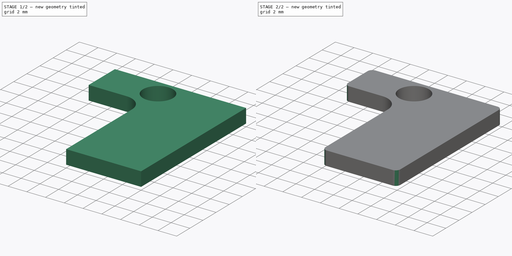
[diagram: build sequence overview — one tinted view per stage of 2, left to right]
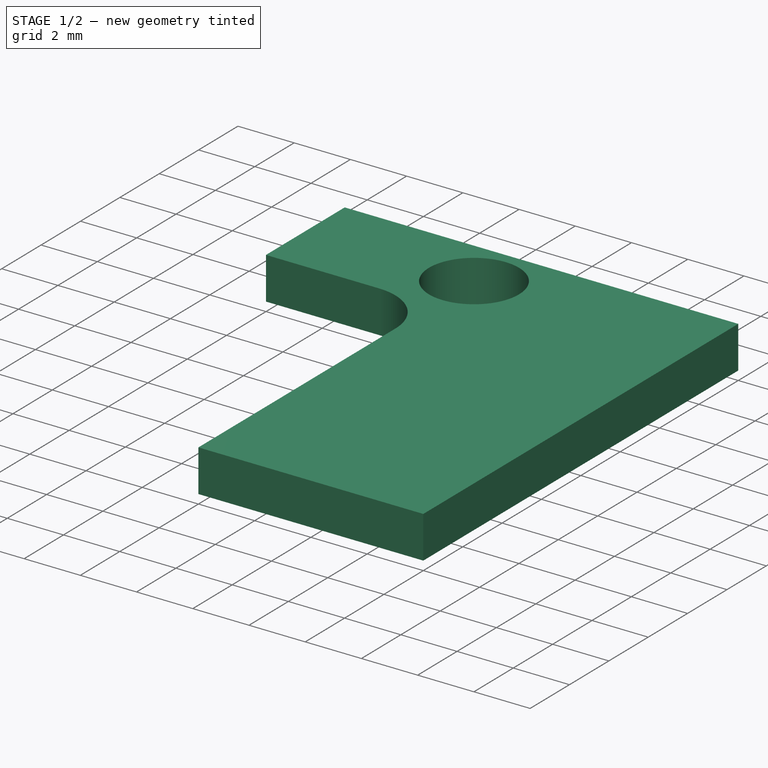
[diagram: stage 1 of 2 — iso view after this stage's code; geometry added in this stage tinted green]
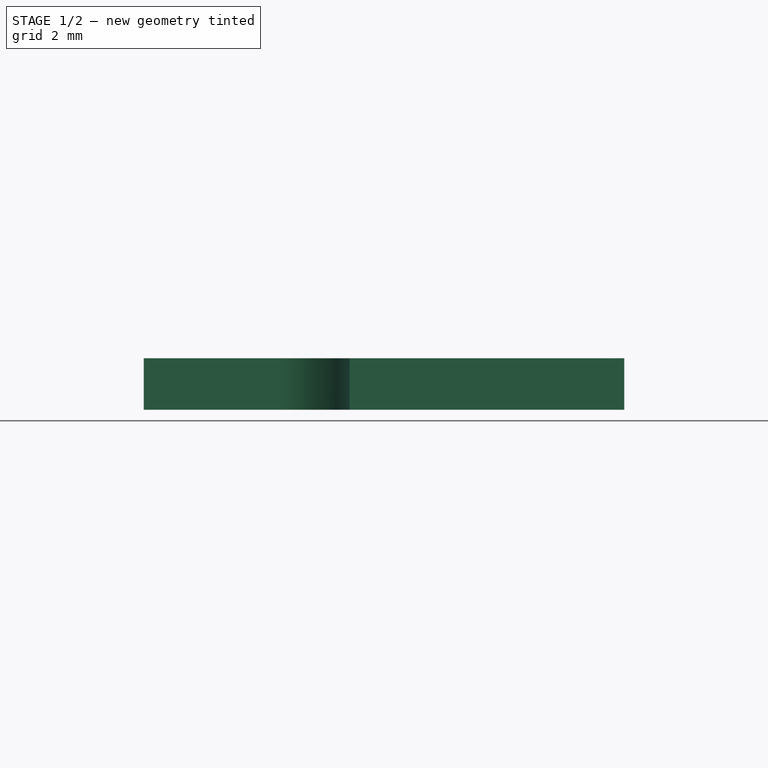
[diagram: stage 1 of 2 — front view after this stage's code; geometry added in this stage tinted green]
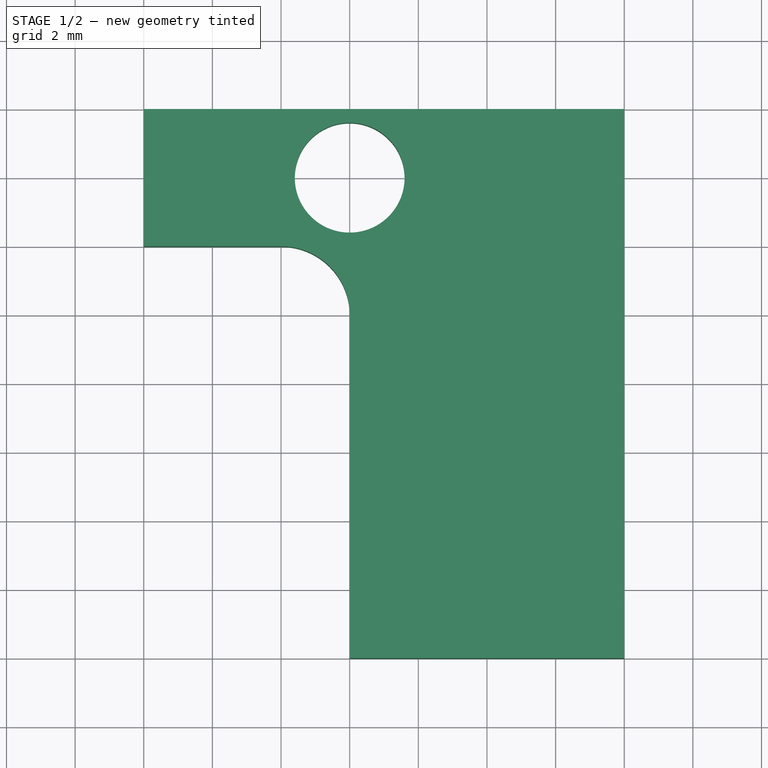
[diagram: stage 1 of 2 — top view after this stage's code; geometry added in this stage tinted green]
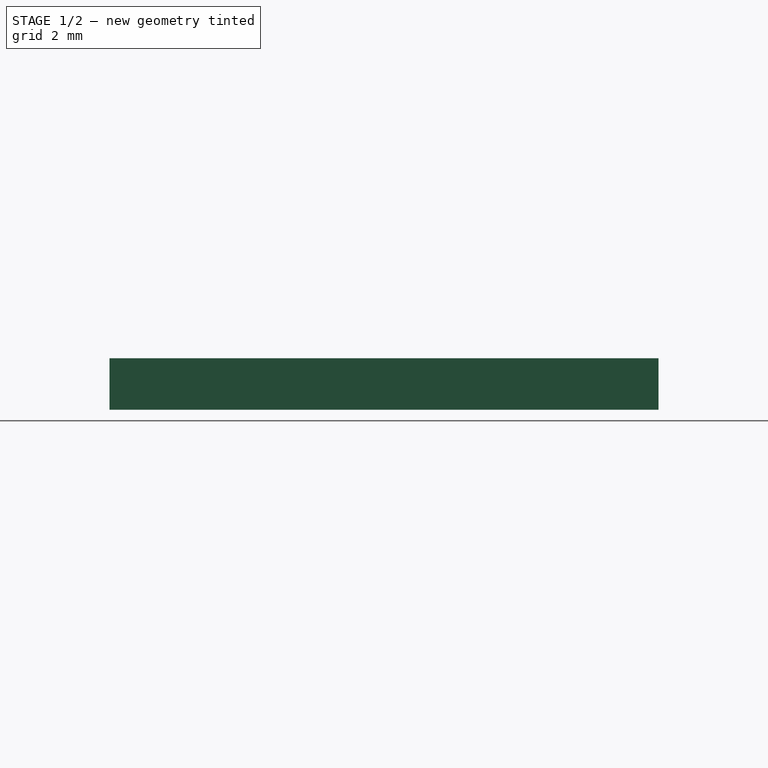
[diagram: stage 1 of 2 — right view after this stage's code; geometry added in this stage tinted green]
FCSTD DOCUMENT  (FreeCAD 0.17R11850 (Git))
Label: somestruder_retention_plate
License: All rights reserved
LicenseURL: http://en.wikipedia.org/wiki/All_rights_reserved
objects: Drawing::FeatureView×13, Drawing::FeatureViewPart×4, PartDesign::Fillet×2, Sketcher::SketchObject×1, PartDesign::Pad×1, PartDesign::Body×1, Drawing::FeaturePage×1
note: 6 computed .brp shape members not serialized (recipe doc carries the construction recipe); baked Part::Feature solids carry a one-line shape summary decoded from their .brp

FEATURE [Sketcher::SketchObject] Sketch
  MapMode = 5
  Support = -> [XY_Plane]
  sketch-geometry (9):
    g0: LineSegment StartX=8 StartY=0 StartZ=0 EndX=8 EndY=16 EndZ=0
    g1: LineSegment StartX=8 StartY=16 StartZ=0 EndX=-6 EndY=16 EndZ=0
    g2: LineSegment StartX=0 StartY=0 StartZ=0 EndX=0 EndY=12 EndZ=0
    g3: LineSegment StartX=0 StartY=12 StartZ=0 EndX=-6 EndY=12 EndZ=0
    g4: Circle CenterX=15.6092 CenterY=41.986 CenterZ=0 NormalX=0 NormalY=0 NormalZ=1 Radius=5.85302
    g5: LineSegment StartX=-6 StartY=16 StartZ=0 EndX=-6 EndY=12 EndZ=0
    g6: LineSegment StartX=0 StartY=0 StartZ=0 EndX=8 EndY=0 EndZ=0
    g7: Circle CenterX=0 CenterY=14 CenterZ=0 NormalX=0 NormalY=0 NormalZ=1 Radius=1.6
    g8: LineSegment [constr] StartX=0 StartY=16 StartZ=0 EndX=0 EndY=12 EndZ=0
  constraints (23):
    c: Coincident(g0,g1)
    c: Horizontal(g1)
    c: Vertical(g0)
    c: Coincident(g2,g3)
    c: Horizontal(g3)
    c: Vertical(g2)
    c: Coincident(g5,g1)
    c: Coincident(g5,g3)
    c: Vertical(g5)
    c: Coincident(g6,g2)
    c: Coincident(g6,g0)
    c: Horizontal(g6)
    c: DistanceX(g1,g1) = 14
    c: DistanceY(g0,g0) = 16
    c: DistanceY(g5,g5) = 4
    c: DistanceX(g6,g6) = 8
    c: Coincident(g2,g-1)
    c: PointOnObject(g7,g-2)
    c: Radius(g7) = 1.6
    c: PointOnObject(g8,g1)
    c: Coincident(g8,g2)
    c: Vertical(g8)
    c: Symmetric(g2,g8,g7)
FEATURE [PartDesign::Pad] Pad
  Length = 1.5
  Length2 = 100
  Profile = -> Sketch
  Type = 0
FEATURE [PartDesign::Fillet] Fillet
  Base = -> Pad [Edge14]
  BaseFeature = -> Pad
  Radius = 2
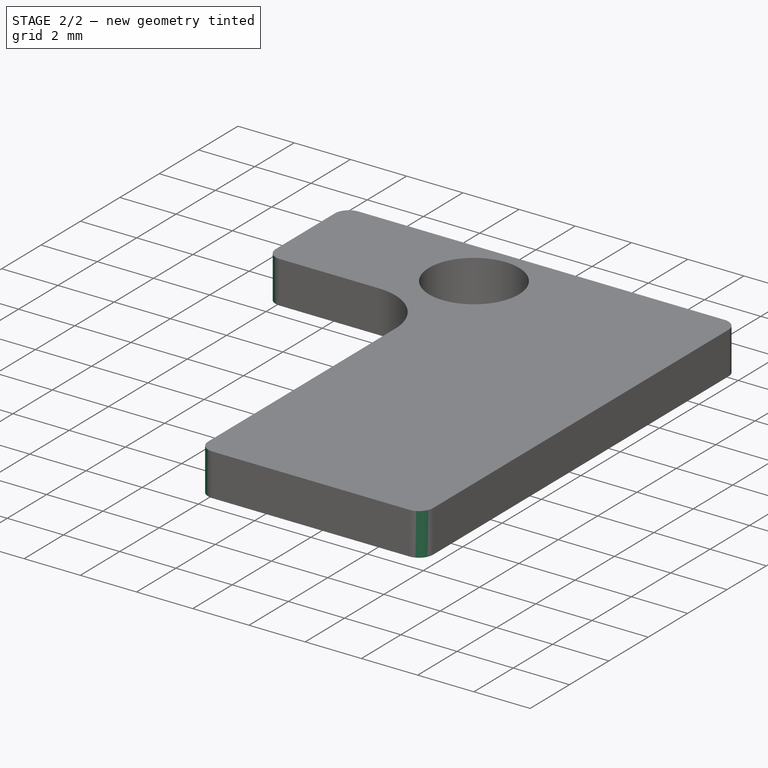
[diagram: stage 2 of 2 — iso view after this stage's code; geometry added in this stage tinted green]
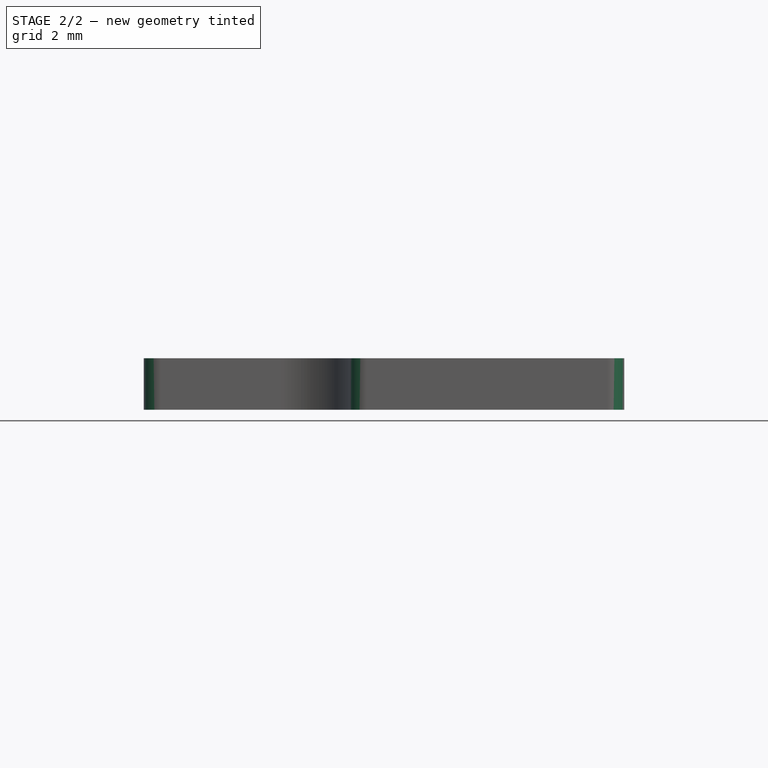
[diagram: stage 2 of 2 — front view after this stage's code; geometry added in this stage tinted green]
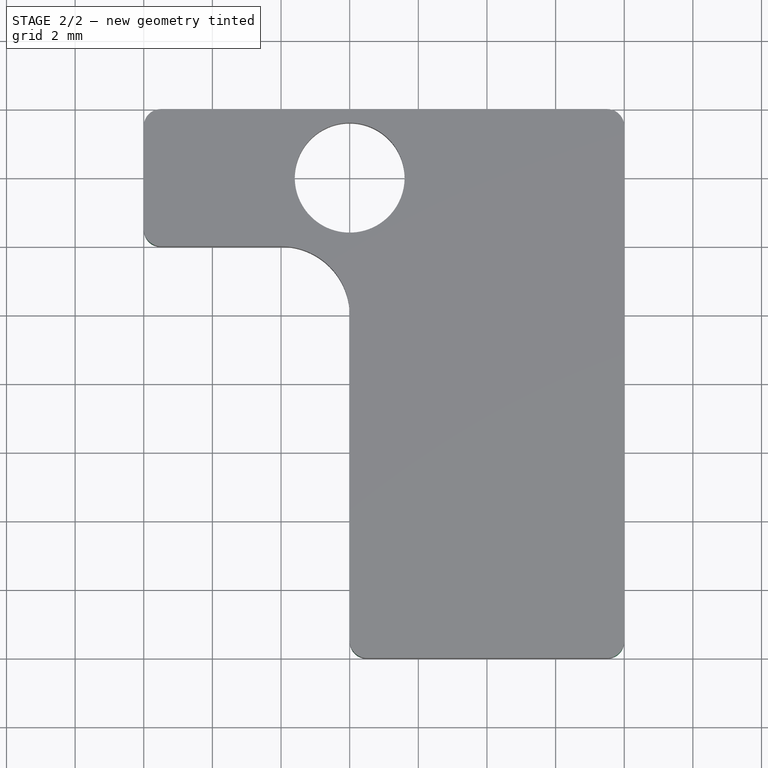
[diagram: stage 2 of 2 — top view after this stage's code; geometry added in this stage tinted green]
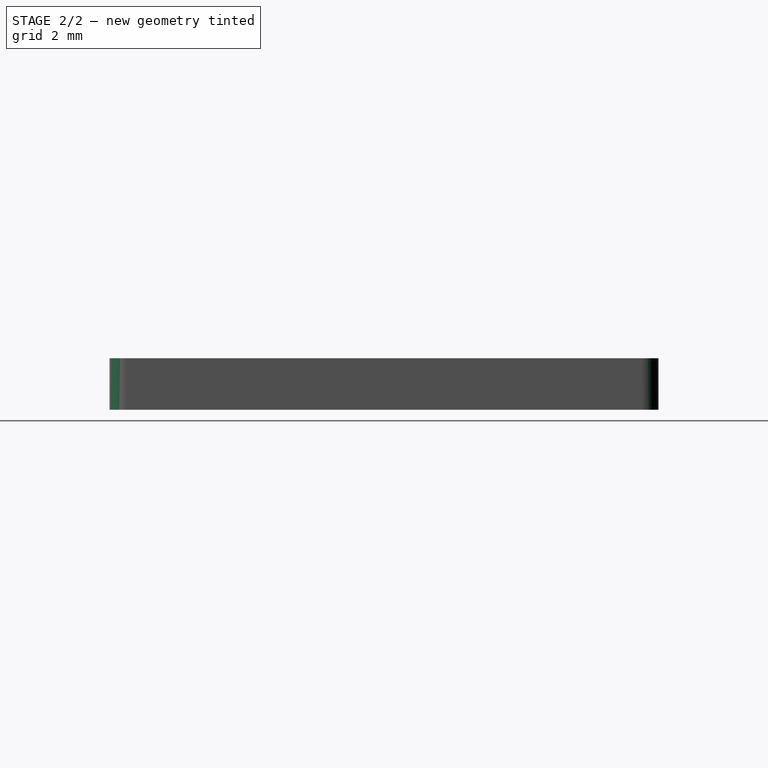
[diagram: stage 2 of 2 — right view after this stage's code; geometry added in this stage tinted green]
FEATURE [PartDesign::Fillet] Fillet001
  Base = -> Fillet [Edge3,Edge14,Edge21,Edge23,Edge22]
  BaseFeature = -> Fillet
  Radius = 0.5
FEATURE [PartDesign::Body] Body
  Group = -> [Sketch,Pad,Fillet,Fillet001]
  Origin = -> Origin
  Tip = -> Fillet001
FEATURE [Drawing::FeatureViewPart] Ortho  label="Ortho_0_0"
  Direction = (1,0,0)
  HiddenWidth = 0.15
  LineWidth = 0.35
  Rotation = -90
  Scale = 5
  ShowHiddenLines = false
  ShowSmoothLines = false
  Source = -> Fillet001
  Tolerance = 0.05
  ViewResult = <g id="Ortho_0_0"\n   transform="rotate(-90,52.3333,131.167) translate(52.3333,131.167) scale(5,5)"\n  >\n<g   fill="none"\n   stroke="rgb(0, 0, 0)"\n   stroke-linecap="butt"\n   stroke-linejoin="miter"\n   stroke-width="0.125"\n   stroke_width="0.070000"\n   transform="scale(1,-1)"\n  >\n<path d="M0,-16 C0,-15.9996 0,-15.946 0,-15.8536  C0,-15.7605 0,-15.6312 0,-15.5 " /><path d="M0,1.11022e-16 C0,-0.000433548 0,-0.0539773 0,-0.146447  C0,-0.239529 0,-0.368795 0,-0.5 " /><path id= "3" d=" M 0 -0.5 L 0 -15.5 " />\n<path d="M1.5,-16 C1.5,-15.9996 1.5,-15.946 1.5,-15.8536  C1.5,-15.7605 1.5,-15.6312 1.5,-15.5 " /><path d="M1.5,1.11022e-16 C1.5,-0.000433548 1.5,-0.0539773 1.5,-0.146447  C1.5,-0.239529 1.5,-0.368795 1.5,-0.5 " /><path id= "6" d=" M 1.5 -0.5 L 1.5 -15.5 " />\n<path id= "7" d=" M 0 -16 L 1.5 -16 " />\n<path id= "8" d=" M 0 1.11022e-16 L 1.5 1.11022e-16 " />\n</g>\n</g>
  Visible = true
  X = 52.3333
  Y = 131.167
FEATURE [Drawing::FeatureViewPart] Ortho001  label="Ortho_1_0"
  Direction = (0,1,0)
  HiddenWidth = 0.15
  LineWidth = 0.35
  Rotation = -90
  Scale = 5
  ShowHiddenLines = false
  ShowSmoothLines = false
  Source = -> Fillet001
  Tolerance = 0.05
  ViewResult = <g id="Ortho_1_0"\n   transform="rotate(-90,214.667,131.167) translate(214.667,131.167) scale(5,5)"\n  >\n<g   fill="none"\n   stroke="rgb(0, 0, 0)"\n   stroke-linecap="butt"\n   stroke-linejoin="miter"\n   stroke-width="0.125"\n   stroke_width="0.070000"\n   transform="scale(1,-1)"\n  >\n<path d="M0,-6 C0,-5.99957 0,-5.94602 0,-5.85355  C0,-5.76047 0,-5.6312 0,-5.5 " /><path id= "2" d=" M 0 7.5 L 0 -5.5 " />\n<path d="M0,7.5 C0,7.6312 0,7.76047 0,7.85355  C0,7.94602 0,7.99957 0,8 " /><path d="M1.5,-6 C1.5,-5.99957 1.5,-5.94602 1.5,-5.85355  C1.5,-5.76047 1.5,-5.6312 1.5,-5.5 " /><path id= "5" d=" M 1.5 7.5 L 1.5 -5.5 " />\n<path d="M1.5,7.5 C1.5,7.6312 1.5,7.76047 1.5,7.85355  C1.5,7.94602 1.5,7.99957 1.5,8 " /><path id= "7" d=" M 0 -6 L 1.5 -6 " />\n<path id= "8" d=" M 0 8 L 1.5 8 " />\n</g>\n</g>
  Visible = true
  X = 214.667
  Y = 131.167
FEATURE [Drawing::FeatureViewPart] Ortho002  label="Ortho_1_1"
  Direction = (0.57735,0.57735,0.57735)
  HiddenWidth = 0.15
  LineWidth = 0.35
  Rotation = 120
  Scale = 5
  ShowHiddenLines = false
  ShowSmoothLines = false
  Source = -> Fillet001
  Tolerance = 0.05
  ViewResult = <blob: 2114 chars omitted>
  Visible = true
  X = 184.918
  Y = 51.524
FEATURE [Drawing::FeatureViewPart] Ortho003  label="Ortho_0_1"
  Direction = (0,0,1)
  HiddenWidth = 0.15
  LineWidth = 0.35
  Rotation = 90
  Scale = 5
  ShowHiddenLines = false
  ShowSmoothLines = false
  Source = -> Fillet001
  Tolerance = 0.05
  ViewResult = <g id="Ortho_0_1"\n   transform="rotate(90,52.3333,61.8333) translate(52.3333,61.8333) scale(5,5)"\n  >\n<g   fill="none"\n   stroke="rgb(0, 0, 0)"\n   stroke-linecap="butt"\n   stroke-linejoin="miter"\n   stroke-width="0.125"\n   stroke_width="0.070000"\n   transform="scale(1,-1)"\n  >\n<path id= "1" d=" M -2 12 L -5.5 12 " />\n<path d="M-5.5 12 A0.5 0.5 0 0 0 -6 12.5" /><path d="M-2 12 A2 2 0 0 0 4.44089e-16 10" /><path id= "4" d=" M -6 15.5 L -6 12.5 " />\n<path id= "5" d=" M 0 0.5 L 0 10 " />\n<path d="M-6 15.5 A0.5 0.5 0 0 0 -5.5 16" /><path d="M-1.11022e-16 0.5 A0.5 0.5 0 0 1 0.5 -1.11022e-16" /><path id= "8" d=" M 7.5 16 L -5.5 16 " />\n<path id= "9" d=" M 0.5 0 L 7.5 0 " />\n<path d="M7.5 16 A0.5 0.5 0 0 0 8 15.5" /><path d="M7.5 -1.11022e-16 A0.5 0.5 0 0 1 8 0.5" /><path id= "12" d=" M 8 0.5 L 8 15.5 " />\n<circle cx ="0" cy ="14" r ="1.6" /></g>\n</g>
  Visible = true
  X = 52.3333
  Y = 61.8333
FEATURE [Drawing::FeatureView] dim001
  Rotation = 0
  ViewResult = <g> <line x1="52.833300" y1="61.833300" x2="39.000000" y2="61.833300" style="stroke:rgb(0,0,255);stroke-width:0.20" />\n<line x1="52.833300" y1="101.833300" x2="39.000000" y2="101.833300" style="stroke:rgb(0,0,255);stroke-width:0.20" />\n<line x1="40.000000" y1="61.833300" x2="40.000000" y2="101.833300" style="stroke:rgb(0,0,255);stroke-width:0.20" />\n<polygon points="40.000000,61.833300 39.250000,64.833300 40.000000,64.833300 40.750000,64.833300" style="fill:rgb(0,0,255);stroke:rgb(0,0,255);stroke-width:0" />\n<polygon points="40.000000,101.833300 40.750000,98.833300 40.000000,98.833300 39.250000,98.833300" style="fill:rgb(0,0,255);stroke:rgb(0,0,255);stroke-width:0" />\n<text x="35.000000" y="80.000000" font-family="Verdana" font-size="3" fill="rgb(0,0,255)" text-anchor="middle"  >8.00</text> </g> 
  Visible = true
  X = 0
  Y = 0
FEATURE [Drawing::FeatureView] dim002
  Rotation = 0
  ViewResult = <g> <line x1="112.333300" y1="32.333300" x2="112.333300" y2="19.000000" style="stroke:rgb(0,0,255);stroke-width:0.20" />\n<line x1="132.333300" y1="32.333300" x2="132.333300" y2="19.000000" style="stroke:rgb(0,0,255);stroke-width:0.20" />\n<line x1="112.333300" y1="20.000000" x2="132.333300" y2="20.000000" style="stroke:rgb(0,0,255);stroke-width:0.20" />\n<polygon points="112.333300,20.000000 115.333300,20.750000 115.333300,20.000000 115.333300,19.250000" style="fill:rgb(0,0,255);stroke:rgb(0,0,255);stroke-width:0" />\n<polygon points="132.333300,20.000000 129.333300,19.250000 129.333300,20.000000 129.333300,20.750000" style="fill:rgb(0,0,255);stroke:rgb(0,0,255);stroke-width:0" />\n<text x="122.333300" y="19.000000" font-family="Verdana" font-size="3" fill="rgb(0,0,255)" text-anchor="middle"  >4.00</text> </g> 
  Visible = true
  X = 0
  Y = 0
FEATURE [Drawing::FeatureView] dim003
  Rotation = 0
  ViewResult = <g> <line x1="52.333300" y1="133.167000" x2="52.333300" y2="146.000000" style="stroke:rgb(0,0,255);stroke-width:0.20" />\n<line x1="132.333300" y1="133.167000" x2="132.333300" y2="146.000000" style="stroke:rgb(0,0,255);stroke-width:0.20" />\n<line x1="52.333300" y1="145.000000" x2="132.333300" y2="145.000000" style="stroke:rgb(0,0,255);stroke-width:0.20" />\n<polygon points="52.333300,145.000000 55.333300,145.750000 55.333300,145.000000 55.333300,144.250000" style="fill:rgb(0,0,255);stroke:rgb(0,0,255);stroke-width:0" />\n<polygon points="132.333300,145.000000 129.333300,144.250000 129.333300,145.000000 129.333300,145.750000" style="fill:rgb(0,0,255);stroke:rgb(0,0,255);stroke-width:0" />\n<text x="92.333300" y="144.000000" font-family="Verdana" font-size="3" fill="rgb(0,0,255)" text-anchor="middle"  >16.00</text> </g> 
  Visible = true
  X = 0
  Y = 0
FEATURE [Drawing::FeatureView] dim004
  Rotation = 0
  ViewResult = <g> <line x1="174.667000" y1="133.167000" x2="174.667000" y2="146.000000" style="stroke:rgb(0,0,255);stroke-width:0.20" />\n<line x1="244.667000" y1="133.167000" x2="244.667000" y2="146.000000" style="stroke:rgb(0,0,255);stroke-width:0.20" />\n<line x1="174.667000" y1="145.000000" x2="244.667000" y2="145.000000" style="stroke:rgb(0,0,255);stroke-width:0.20" />\n<polygon points="174.667000,145.000000 177.667000,145.750000 177.667000,145.000000 177.667000,144.250000" style="fill:rgb(0,0,255);stroke:rgb(0,0,255);stroke-width:0" />\n<polygon points="244.667000,145.000000 241.667000,144.250000 241.667000,145.000000 241.667000,145.750000" style="fill:rgb(0,0,255);stroke:rgb(0,0,255);stroke-width:0" />\n<text x="209.667000" y="144.000000" font-family="Verdana" font-size="3" fill="rgb(0,0,255)" text-anchor="middle"  >14.00</text> </g> 
  Visible = true
  X = 0
  Y = 0
FEATURE [Drawing::FeatureView] grabPoint001
  Rotation = 0
  ViewResult = <g> <line x1="110.0" y1="60.0" x2="110.0" y2="60.0" style="stroke:rgb(0,0,0);stroke-width:0.01" /> </g> 
  Visible = true
  X = 0
  Y = 0
FEATURE [Drawing::FeatureView] dimLine001
  Rotation = 0
  ViewResult = <g   >\n<line x1="95.000000" y1="45.000000" x2="110.000000" y2="60.000000" style="stroke:rgb(0,0,255);stroke-width:0.20" />\n<polygon points="110.000000,60.000000 108.409010,57.348350 107.878680,57.878680 107.348350,58.409010" style="fill:rgb(0,0,255);stroke:rgb(0,0,255);stroke-width:0" />\n<line x1="95.000000" y1="45.000000" x2="75.000000" y2="45.000000" style="stroke:rgb(0,0,255);stroke-width:0.20" />\n</g> 
  Visible = true
  X = 0
  Y = 0
FEATURE [Drawing::FeatureView] dimText001
  Rotation = 0
  ViewResult = <g> <text x="75.000000" y="45.000000" font-family="inherit" font-size="3" fill="rgb(0,0,255)" text-anchor="inherit" transform="rotate(0.000000 75.000000,45.000000)" >R 1.00mm</text> </g>
  Visible = true
  X = 0
  Y = 0
FEATURE [Drawing::FeatureView] dimText002
  Rotation = 0
  ViewResult = <g> <text x="20.000000" y="165.000000" font-family="inherit" font-size="4" fill="rgb(0,0,0)" text-anchor="inherit" transform="rotate(0.000000 20.000000,165.000000)" >NOTES:</text> </g>
  Visible = true
  X = 0
  Y = 0
FEATURE [Drawing::FeatureView] dimText003
  Rotation = 0
  ViewResult = <g> <text x="30.000000" y="170.000000" font-family="inherit" font-size="3" fill="rgb(0,0,0)" text-anchor="inherit" transform="rotate(0.000000 30.000000,170.000000)" >Parts must be ROHS complient</text> </g>
  Visible = true
  X = 0
  Y = 0
FEATURE [Drawing::FeatureView] dimText004
  Rotation = 0
  ViewResult = <g> <text x="30.000000" y="175.000000" font-family="inherit" font-size="3" fill="rgb(0,0,0)" text-anchor="inherit" transform="rotate(0.000000 30.000000,175.000000)" >Parts must be clean and free of oil and debris</text> </g>
  Visible = true
  X = 0
  Y = 0
FEATURE [Drawing::FeatureView] dimText005
  Rotation = 0
  ViewResult = <g> <text x="30.000000" y="180.000000" font-family="inherit" font-size="3" fill="rgb(0,0,0)" text-anchor="inherit" transform="rotate(0.000000 30.000000,180.000000)" >Break all edges</text> </g>
  Visible = true
  X = 0
  Y = 0
FEATURE [Drawing::FeatureView] dim006
  Rotation = 0
  ViewResult = <g> <line x1="52.833300" y1="123.667000" x2="39.000000" y2="123.667000" style="stroke:rgb(0,0,255);stroke-width:0.20" />\n<line x1="52.833300" y1="131.167000" x2="39.000000" y2="131.167000" style="stroke:rgb(0,0,255);stroke-width:0.20" />\n<line x1="40.000000" y1="123.667000" x2="40.000000" y2="131.167000" style="stroke:rgb(0,0,255);stroke-width:0.20" />\n<polygon points="40.000000,123.667000 40.750000,120.667000 40.000000,120.667000 39.250000,120.667000" style="fill:rgb(0,0,255);stroke:rgb(0,0,255);stroke-width:0" />\n<polygon points="40.000000,131.167000 39.250000,134.167000 40.000000,134.167000 40.750000,134.167000" style="fill:rgb(0,0,255);stroke:rgb(0,0,255);stroke-width:0" />\n<text x="35.142575" y="128.282686" font-family="Verdana" font-size="3" fill="rgb(0,0,255)" text-anchor="middle"  >1.5</text> </g> 
  Visible = true
  X = 0
  Y = 0
FEATURE [Drawing::FeatureView] dim005
  Rotation = 0
  ViewResult = <g>  <circle cx ="122.333300" cy ="61.833300" r="0.000000" stroke="none" fill="rgb(0,0,255)" /> \n<line x1="140.000000" y1="40.000000" x2="117.301070" y2="68.052356" style="stroke:rgb(0,0,255);stroke-width:0.20" />\n<polygon points="127.365530,55.614244 124.895408,57.474618 125.478444,57.946390 126.061481,58.418162" style="fill:rgb(0,0,255);stroke:rgb(0,0,255);stroke-width:0" />\n<polygon points="117.301070,68.052356 119.771192,66.191982 119.188156,65.720210 118.605119,65.248438" style="fill:rgb(0,0,255);stroke:rgb(0,0,255);stroke-width:0" />\n<line x1="140.000000" y1="40.000000" x2="160.000000" y2="40.000000" style="stroke:rgb(0,0,255);stroke-width:0.20" />\n<text x="150.000000" y="39.000000" font-family="Verdana" font-size="3" fill="rgb(0,0,255)" text-anchor="middle" transform="rotate(0.000000 150.000000,39.000000)" >Ø3.2</text> </g>
  Visible = true
  X = 0
  Y = 0
FEATURE [Drawing::FeaturePage] Page
  EditableTexts = BALDWIN | 7/21/17 | N/A | Some-struder retention plate | IR | PP-MP0177 | 1 of 1 | 5052 Aluminium
  Group = -> [Ortho,Ortho001,Ortho002,Ortho003,dim001,dim002,dim003,dim004,grabPoint001,dimLine001,dimText001,dimText002,dimText003,dimText004,dimText005,dim006,dim005]
  Template = <userpath>/shared-j/Documents/R&D/titleblocks/A4_Landscape_Aleph.svg
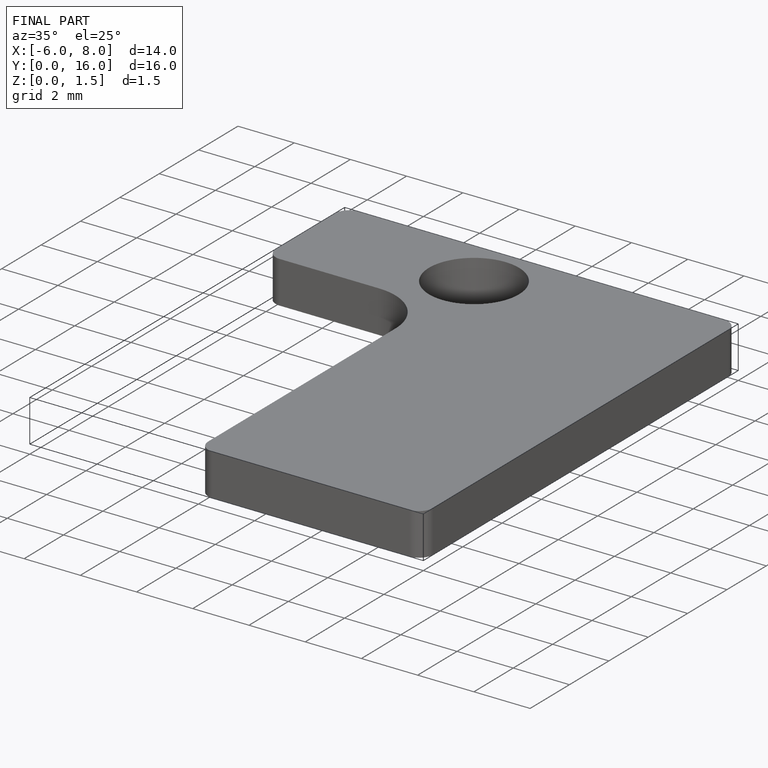
[diagram: finished part — iso view with bounding-box wireframe]
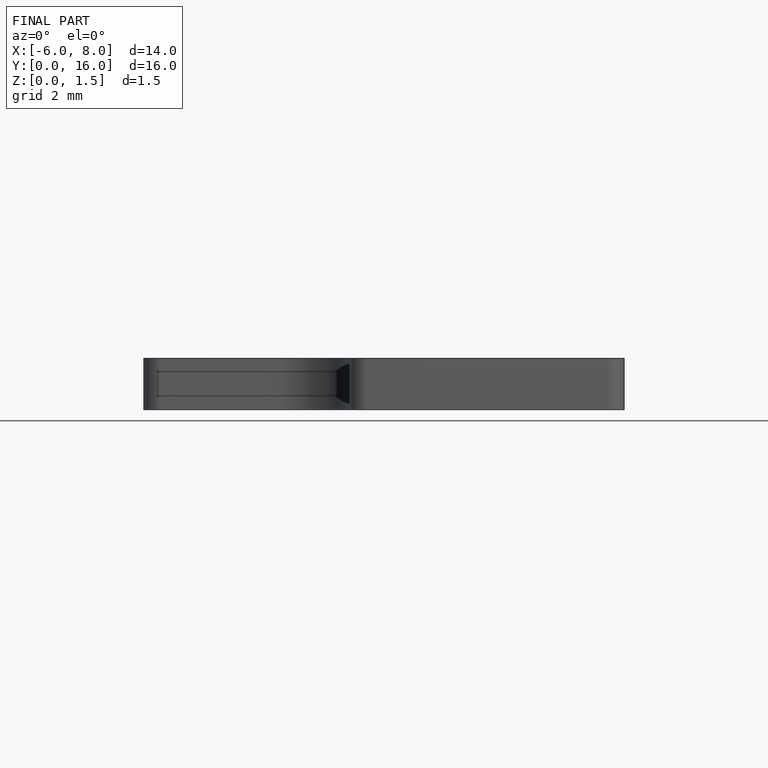
[diagram: finished part — front view with bounding-box wireframe]
